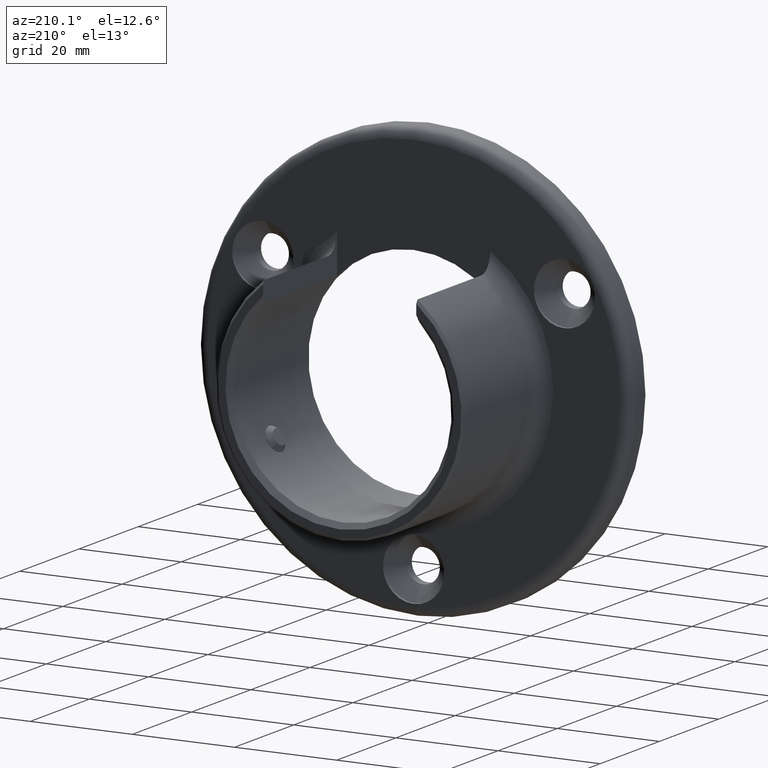
[diagram: clean part render]
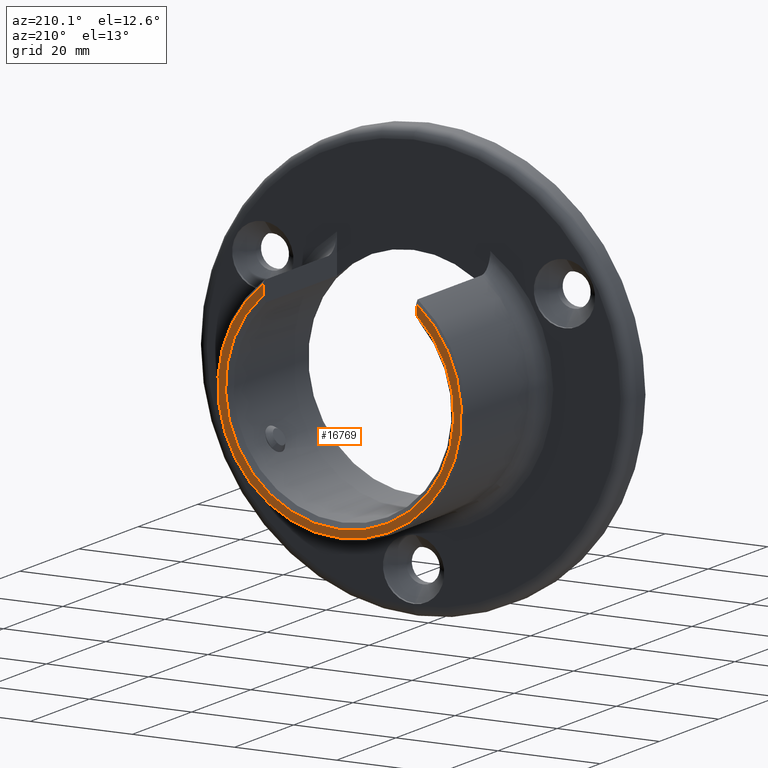
[diagram: same view with one face highlighted and labeled with its STEP entity id]
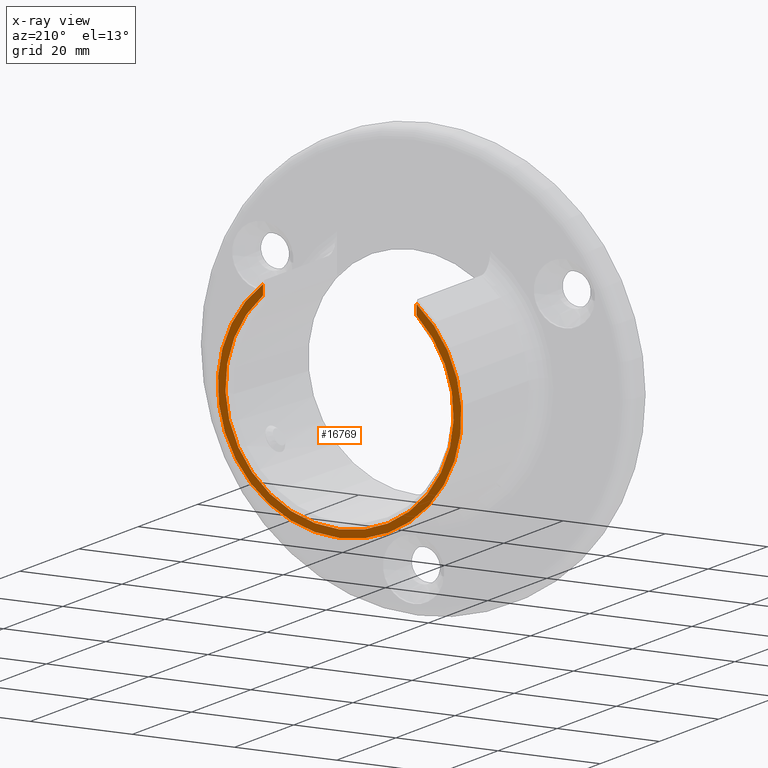
[diagram: x-ray of the same camera — body ghosted, the highlighted face saturated]
A machine part, auxiliary view. The second image highlights one B-rep face of the part: STEP entity #16769.
The next image is the same camera in x-ray: the body ghosted, the highlighted face saturated — about 0% of this face is hidden behind the body in this view.
In plain terms, the highlighted planar face has unit normal (0, 1, 0).
Its self-contained STEP definition (entity closure, byte-faithful):
#1358 = ORIENTED_EDGE ( 'NONE', *, *, #2205, .T. ) ;
#1503 = CARTESIAN_POINT ( 'NONE',  ( 0.000000000000000000, 30.00000000000000355, 0.000000000000000000 ) ) ;
#1506 = CARTESIAN_POINT ( 'NONE',  ( 15.00000000000000355, 30.00000000000000355, 18.54245129425986249 ) ) ;
#2105 = VECTOR ( 'NONE', #4857, 1000.000000000000000 ) ;
#2205 = EDGE_CURVE ( 'NONE', #15278, #7308, #4548, .T. ) ;
#2594 = EDGE_CURVE ( 'NONE', #7416, #9095, #10114, .T. ) ;
#2655 = ORIENTED_EDGE ( 'NONE', *, *, #2594, .T. ) ;
#2851 = ORIENTED_EDGE ( 'NONE', *, *, #17018, .T. ) ;
#2895 = CARTESIAN_POINT ( 'NONE',  ( -15.00000000000000000, 30.00000000000000355, 18.54245129425986605 ) ) ;
#3690 = CIRCLE ( 'NONE', #14363, 22.35000000000002629 ) ;
#4519 = CARTESIAN_POINT ( 'NONE',  ( 15.00000000000000355, 30.00000000000000355, 16.56872052996250844 ) ) ;
#4548 = CIRCLE ( 'NONE', #18516, 23.84999999999998721 ) ;
#4857 = DIRECTION ( 'NONE',  ( 0.000000000000000000, 0.000000000000000000, 1.000000000000000000 ) ) ;
#4928 = EDGE_LOOP ( 'NONE', ( #12532, #8216, #2655, #2851, #1358 ) ) ;
#5610 = DIRECTION ( 'NONE',  ( 0.000000000000000000, 1.000000000000000000, 0.000000000000000000 ) ) ;
#5666 = DIRECTION ( 'NONE',  ( -0.000000000000000000, -1.000000000000000000, -0.000000000000000000 ) ) ;
#5965 = CIRCLE ( 'NONE', #17088, 23.84999999999998721 ) ;
#6465 = DIRECTION ( 'NONE',  ( 0.000000000000000000, -0.000000000000000000, 1.000000000000000000 ) ) ;
#6913 = EDGE_CURVE ( 'NONE', #7308, #9536, #11038, .T. ) ;
#7305 = CARTESIAN_POINT ( 'NONE',  ( -15.00000000000000000, 30.00000000000000355, 16.56872052996250844 ) ) ;
#7308 = VERTEX_POINT ( 'NONE', #2895 ) ;
#7416 = VERTEX_POINT ( 'NONE', #4519 ) ;
#8216 = ORIENTED_EDGE ( 'NONE', *, *, #10013, .T. ) ;
#8830 = DIRECTION ( 'NONE',  ( 0.000000000000000000, 0.000000000000000000, 1.000000000000000000 ) ) ;
#8844 = DIRECTION ( 'NONE',  ( 0.000000000000000000, 0.000000000000000000, 1.000000000000000000 ) ) ;
#9095 = VERTEX_POINT ( 'NONE', #1506 ) ;
#9536 = VERTEX_POINT ( 'NONE', #7305 ) ;
#9554 = VECTOR ( 'NONE', #10639, 1000.000000000000000 ) ;
#10013 = EDGE_CURVE ( 'NONE', #9536, #7416, #3690, .T. ) ;
#10114 = LINE ( 'NONE', #14027, #2105 ) ;
#10639 = DIRECTION ( 'NONE',  ( -0.000000000000000000, -0.000000000000000000, -1.000000000000000000 ) ) ;
#10794 = DIRECTION ( 'NONE',  ( 0.000000000000000000, 0.000000000000000000, 1.000000000000000000 ) ) ;
#11022 = CARTESIAN_POINT ( 'NONE',  ( 0.000000000000000000, 30.00000000000000355, 0.000000000000000000 ) ) ;
#11038 = LINE ( 'NONE', #18159, #9554 ) ;
#11089 = AXIS2_PLACEMENT_3D ( 'NONE', #11022, #11151, #6465 ) ;
#11151 = DIRECTION ( 'NONE',  ( 0.000000000000000000, 1.000000000000000000, 0.000000000000000000 ) ) ;
#11224 = PLANE ( 'NONE',  #11089 ) ;
#12532 = ORIENTED_EDGE ( 'NONE', *, *, #6913, .T. ) ;
#13488 = CARTESIAN_POINT ( 'NONE',  ( 0.000000000000000000, 30.00000000000000355, 0.000000000000000000 ) ) ;
#14027 = CARTESIAN_POINT ( 'NONE',  ( 15.00000000000000355, 30.00000000000000355, 15.19284371011562662 ) ) ;
#14363 = AXIS2_PLACEMENT_3D ( 'NONE', #16331, #5666, #8830 ) ;
#15278 = VERTEX_POINT ( 'NONE', #19780 ) ;
#15501 = DIRECTION ( 'NONE',  ( 0.000000000000000000, 1.000000000000000000, 0.000000000000000000 ) ) ;
#16331 = CARTESIAN_POINT ( 'NONE',  ( 0.000000000000000000, 30.00000000000000355, 0.000000000000000000 ) ) ;
#16769 = ADVANCED_FACE ( 'NONE', ( #16954 ), #11224, .T. ) ;
#16954 = FACE_OUTER_BOUND ( 'NONE', #4928, .T. ) ;
#17018 = EDGE_CURVE ( 'NONE', #9095, #15278, #5965, .T. ) ;
#17088 = AXIS2_PLACEMENT_3D ( 'NONE', #1503, #15501, #10794 ) ;
#18159 = CARTESIAN_POINT ( 'NONE',  ( -15.00000000000000000, 30.00000000000000355, 15.19284371011563017 ) ) ;
#18516 = AXIS2_PLACEMENT_3D ( 'NONE', #13488, #5610, #8844 ) ;
#19780 = CARTESIAN_POINT ( 'NONE',  ( 0.000000000000000000, 30.00000000000000355, -23.84999999999998721 ) ) ;